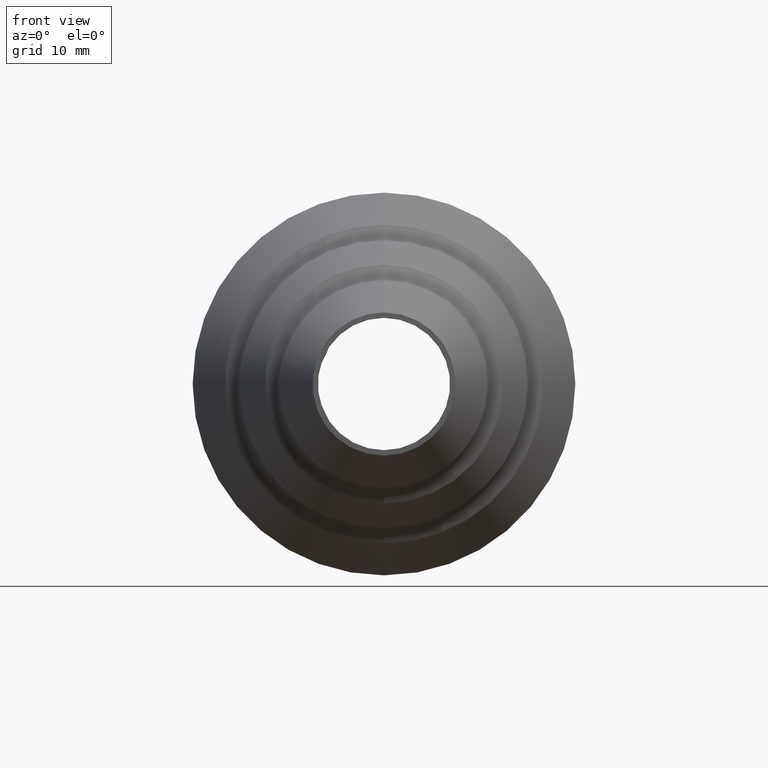
[diagram: clean part render]
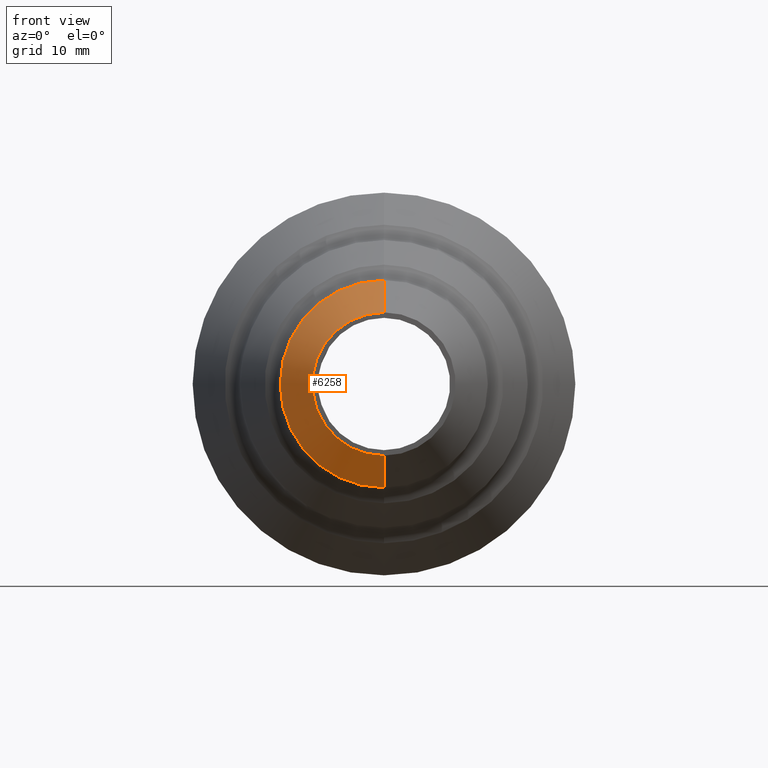
[diagram: same view with one face highlighted and labeled with its STEP entity id]
A machine part, front view. The second image highlights one B-rep face of the part: STEP entity #6258.
In plain terms, the highlighted conical surface has half-angle 28.402 deg.
Its self-contained STEP definition (entity closure, byte-faithful):
#24 = CARTESIAN_POINT ( 'NONE',  ( -1.161763639293642018E-15, -17.06944925483278652, 9.486520032571897687 ) ) ;
#499 = CARTESIAN_POINT ( 'NONE',  ( 0.000000000000000000, -17.06944925483278652, -9.486520032571897687 ) ) ;
#682 = VECTOR ( 'NONE', #10328, 999.9999999999998863 ) ;
#851 = VERTEX_POINT ( 'NONE', #11990 ) ;
#881 = ORIENTED_EDGE ( 'NONE', *, *, #10215, .F. ) ;
#1274 = VERTEX_POINT ( 'NONE', #6596 ) ;
#1284 = AXIS2_PLACEMENT_3D ( 'NONE', #2482, #12464, #11468 ) ;
#1375 = CIRCLE ( 'NONE', #12489, 6.549999999999997158 ) ;
#1629 = CARTESIAN_POINT ( 'NONE',  ( 0.000000000000000000, -17.06944925483278652, -9.486520032571897687 ) ) ;
#2172 = EDGE_LOOP ( 'NONE', ( #881, #8474, #6842, #3108 ) ) ;
#2482 = CARTESIAN_POINT ( 'NONE',  ( 0.000000000000000000, -17.06944925483278652, 0.000000000000000000 ) ) ;
#2841 = EDGE_CURVE ( 'NONE', #1274, #13548, #7719, .T. ) ;
#3108 = ORIENTED_EDGE ( 'NONE', *, *, #11258, .F. ) ;
#3876 = DIRECTION ( 'NONE',  ( 0.000000000000000000, 0.000000000000000000, -1.000000000000000000 ) ) ;
#4916 = EDGE_CURVE ( 'NONE', #851, #1274, #12554, .T. ) ;
#5278 = DIRECTION ( 'NONE',  ( 0.000000000000000000, 0.000000000000000000, -1.000000000000000000 ) ) ;
#6258 = ADVANCED_FACE ( 'NONE', ( #9257 ), #9076, .T. ) ;
#6458 = DIRECTION ( 'NONE',  ( 0.000000000000000000, -1.000000000000000000, 0.000000000000000000 ) ) ;
#6596 = CARTESIAN_POINT ( 'NONE',  ( -1.161763639293642018E-15, -17.06944925483278652, 9.486520032571897687 ) ) ;
#6743 = LINE ( 'NONE', #499, #682 ) ;
#6842 = ORIENTED_EDGE ( 'NONE', *, *, #2841, .T. ) ;
#7071 = CARTESIAN_POINT ( 'NONE',  ( 0.000000000000000000, -22.50000000000000000, -6.549999999999997158 ) ) ;
#7179 = VERTEX_POINT ( 'NONE', #7071 ) ;
#7358 = AXIS2_PLACEMENT_3D ( 'NONE', #13818, #10541, #3876 ) ;
#7719 = CIRCLE ( 'NONE', #1284, 9.486520032571897687 ) ;
#8474 = ORIENTED_EDGE ( 'NONE', *, *, #4916, .T. ) ;
#9076 = CONICAL_SURFACE ( 'NONE', #7358, 9.486520032571897687, 0.4957065921522889052 ) ;
#9257 = FACE_OUTER_BOUND ( 'NONE', #2172, .T. ) ;
#9445 = VECTOR ( 'NONE', #12884, 999.9999999999998863 ) ;
#10215 = EDGE_CURVE ( 'NONE', #851, #7179, #1375, .T. ) ;
#10328 = DIRECTION ( 'NONE',  ( 0.000000000000000000, 0.8796328365551914219, -0.4756533116187334764 ) ) ;
#10541 = DIRECTION ( 'NONE',  ( -0.000000000000000000, 1.000000000000000000, -0.000000000000000000 ) ) ;
#10818 = CARTESIAN_POINT ( 'NONE',  ( 0.000000000000000000, -22.50000000000000000, 0.000000000000000000 ) ) ;
#11258 = EDGE_CURVE ( 'NONE', #7179, #13548, #6743, .T. ) ;
#11468 = DIRECTION ( 'NONE',  ( 0.000000000000000000, 0.000000000000000000, -1.000000000000000000 ) ) ;
#11990 = CARTESIAN_POINT ( 'NONE',  ( -9.819536463675791713E-16, -22.50000000000000000, 6.549999999999997158 ) ) ;
#12464 = DIRECTION ( 'NONE',  ( 0.000000000000000000, -1.000000000000000000, 0.000000000000000000 ) ) ;
#12489 = AXIS2_PLACEMENT_3D ( 'NONE', #10818, #6458, #5278 ) ;
#12554 = LINE ( 'NONE', #24, #9445 ) ;
#12884 = DIRECTION ( 'NONE',  ( -5.825073055777204253E-17, 0.8796328365551914219, 0.4756533116187334764 ) ) ;
#13548 = VERTEX_POINT ( 'NONE', #1629 ) ;
#13818 = CARTESIAN_POINT ( 'NONE',  ( 0.000000000000000000, -17.06944925483278652, 0.000000000000000000 ) ) ;